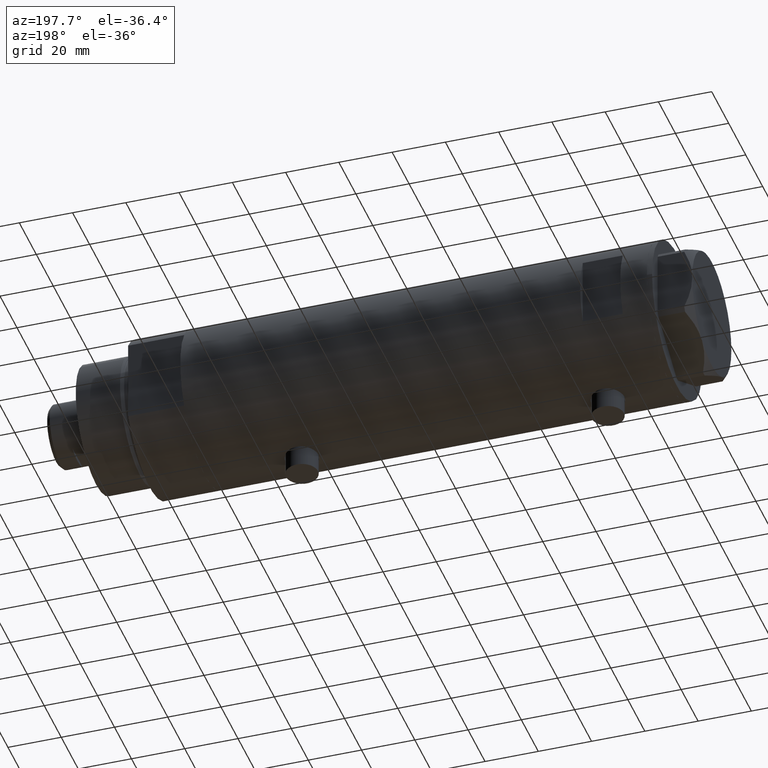
[diagram: clean part render]
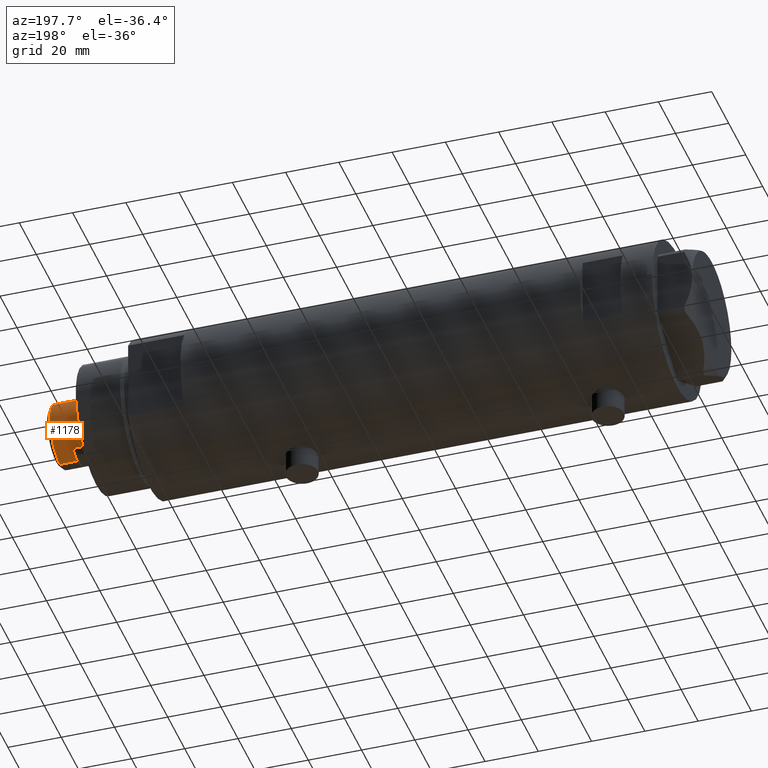
[diagram: same view with one face highlighted and labeled with its STEP entity id]
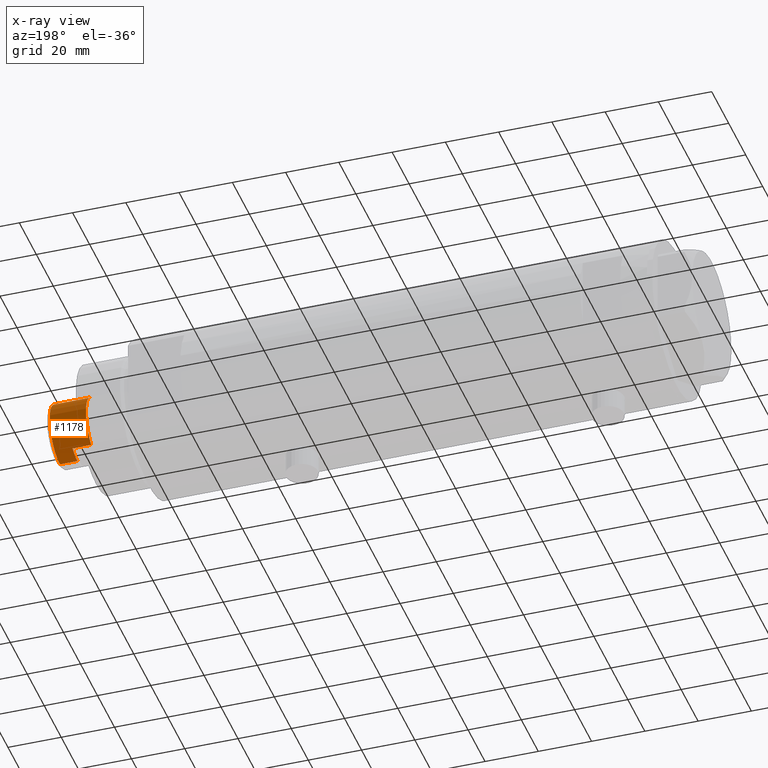
[diagram: x-ray of the same camera — body ghosted, the highlighted face saturated]
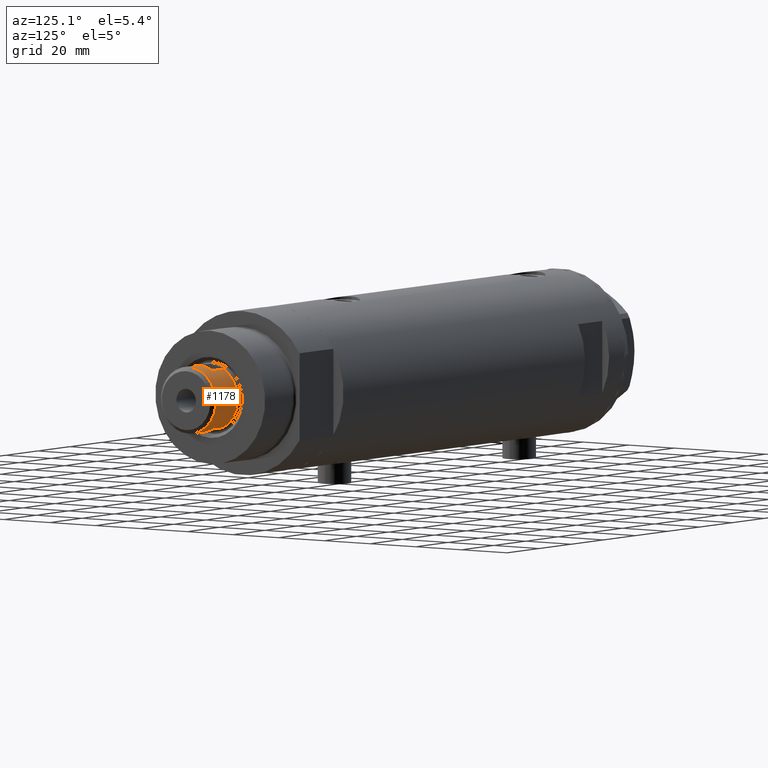
[diagram: same view with one face highlighted and labeled with its STEP entity id]
A machine part, auxiliary view. The second image highlights one B-rep face of the part: STEP entity #1178.
The next image is the same camera in x-ray: the body ghosted, the highlighted face saturated — about 0% of this face is hidden behind the body in this view.
A second angle (auxiliary view) of the same face is appended — the face is thin or edge-on in the first view.
In plain terms, the highlighted cylindrical surface (edge-blend (fillet) strip) has radius 12 mm, axis along (-1, -0, 0).
Its self-contained STEP definition (entity closure, byte-faithful):
#21 = ORIENTED_EDGE ( 'NONE', *, *, #2776, .T. ) ;
#71 = CARTESIAN_POINT ( 'NONE',  ( -10.48861764008966269, 5.829999999999999183, 199.7000000000000171 ) ) ;
#73 = EDGE_CURVE ( 'NONE', #2073, #3695, #3372, .T. ) ;
#249 = EDGE_CURVE ( 'NONE', #3612, #761, #2179, .T. ) ;
#278 = CARTESIAN_POINT ( 'NONE',  ( 0.000000000000000000, 0.000000000000000000, 199.7000000000000171 ) ) ;
#382 = CARTESIAN_POINT ( 'NONE',  ( -12.00000000000000355, 0.000000000000000000, 199.7000000000000171 ) ) ;
#517 = EDGE_LOOP ( 'NONE', ( #21, #4286, #851, #4214, #1190, #2271, #2262, #709 ) ) ;
#575 = CARTESIAN_POINT ( 'NONE',  ( 12.00000000000000000, 1.469576158976823947E-15, 199.7000000000000171 ) ) ;
#703 = DIRECTION ( 'NONE',  ( 0.000000000000000000, 0.000000000000000000, 1.000000000000000000 ) ) ;
#705 = VECTOR ( 'NONE', #3056, 1000.000000000000000 ) ;
#709 = ORIENTED_EDGE ( 'NONE', *, *, #73, .F. ) ;
#761 = VERTEX_POINT ( 'NONE', #2413 ) ;
#851 = ORIENTED_EDGE ( 'NONE', *, *, #3285, .T. ) ;
#999 = EDGE_CURVE ( 'NONE', #3721, #761, #1580, .T. ) ;
#1103 = AXIS2_PLACEMENT_3D ( 'NONE', #3297, #3360, #1898 ) ;
#1155 = CARTESIAN_POINT ( 'NONE',  ( 10.48861764008966269, 5.830000000000000071, 192.7000000000000171 ) ) ;
#1178 = ADVANCED_FACE ( 'NONE', ( #4132 ), #2777, .T. ) ;
#1190 = ORIENTED_EDGE ( 'NONE', *, *, #999, .T. ) ;
#1209 = VERTEX_POINT ( 'NONE', #4199 ) ;
#1262 = CARTESIAN_POINT ( 'NONE',  ( 0.000000000000000000, 0.000000000000000000, 192.7000000000000171 ) ) ;
#1290 = VECTOR ( 'NONE', #3197, 1000.000000000000000 ) ;
#1518 = CARTESIAN_POINT ( 'NONE',  ( -12.00000000000000000, 0.000000000000000000, 206.2999999999999829 ) ) ;
#1537 = LINE ( 'NONE', #575, #2879 ) ;
#1551 = DIRECTION ( 'NONE',  ( -0.000000000000000000, -0.000000000000000000, -1.000000000000000000 ) ) ;
#1580 = CIRCLE ( 'NONE', #4107, 11.99999999999998224 ) ;
#1693 = CARTESIAN_POINT ( 'NONE',  ( -12.00000000000000000, 0.000000000000000000, 199.7000000000000171 ) ) ;
#1713 = DIRECTION ( 'NONE',  ( -0.000000000000000000, -0.000000000000000000, -1.000000000000000000 ) ) ;
#1724 = CARTESIAN_POINT ( 'NONE',  ( -10.48861764008966269, 5.829999999999999183, 199.7000000000000171 ) ) ;
#1817 = CIRCLE ( 'NONE', #3027, 12.00000000000000178 ) ;
#1898 = DIRECTION ( 'NONE',  ( 1.000000000000000000, 0.000000000000000000, 0.000000000000000000 ) ) ;
#2050 = CARTESIAN_POINT ( 'NONE',  ( 10.48861764008966269, 5.830000000000000071, 199.7000000000000171 ) ) ;
#2073 = VERTEX_POINT ( 'NONE', #1518 ) ;
#2096 = CIRCLE ( 'NONE', #4183, 12.00000000000000178 ) ;
#2179 = LINE ( 'NONE', #71, #1290 ) ;
#2262 = ORIENTED_EDGE ( 'NONE', *, *, #2933, .T. ) ;
#2271 = ORIENTED_EDGE ( 'NONE', *, *, #249, .F. ) ;
#2320 = VERTEX_POINT ( 'NONE', #3264 ) ;
#2408 = CARTESIAN_POINT ( 'NONE',  ( 12.00000000000000355, 1.469576158976824342E-15, 199.7000000000000171 ) ) ;
#2413 = CARTESIAN_POINT ( 'NONE',  ( -10.48861764008966269, 5.829999999999960991, 192.7000000000000171 ) ) ;
#2434 = CARTESIAN_POINT ( 'NONE',  ( 0.000000000000000000, 0.000000000000000000, 199.7000000000000171 ) ) ;
#2589 = VECTOR ( 'NONE', #1713, 1000.000000000000000 ) ;
#2672 = DIRECTION ( 'NONE',  ( 0.000000000000000000, 0.000000000000000000, 1.000000000000000000 ) ) ;
#2776 = EDGE_CURVE ( 'NONE', #2073, #2320, #3619, .T. ) ;
#2777 = CYLINDRICAL_SURFACE ( 'NONE', #3093, 12.00000000000000000 ) ;
#2860 = EDGE_CURVE ( 'NONE', #2320, #4306, #1537, .T. ) ;
#2879 = VECTOR ( 'NONE', #1551, 1000.000000000000000 ) ;
#2933 = EDGE_CURVE ( 'NONE', #3612, #3695, #2096, .T. ) ;
#3001 = CARTESIAN_POINT ( 'NONE',  ( 0.000000000000000000, 0.000000000000000000, 199.7000000000000171 ) ) ;
#3027 = AXIS2_PLACEMENT_3D ( 'NONE', #3001, #2672, #3347 ) ;
#3056 = DIRECTION ( 'NONE',  ( -0.000000000000000000, -0.000000000000000000, -1.000000000000000000 ) ) ;
#3093 = AXIS2_PLACEMENT_3D ( 'NONE', #2434, #3809, #3414 ) ;
#3197 = DIRECTION ( 'NONE',  ( -0.000000000000000000, -0.000000000000000000, -1.000000000000000000 ) ) ;
#3260 = EDGE_CURVE ( 'NONE', #1209, #3721, #3778, .T. ) ;
#3262 = DIRECTION ( 'NONE',  ( 0.000000000000000000, 0.000000000000000000, 1.000000000000000000 ) ) ;
#3264 = CARTESIAN_POINT ( 'NONE',  ( 12.00000000000000000, 1.469576158976823947E-15, 206.2999999999999829 ) ) ;
#3285 = EDGE_CURVE ( 'NONE', #4306, #1209, #1817, .T. ) ;
#3297 = CARTESIAN_POINT ( 'NONE',  ( 0.000000000000000000, 0.000000000000000000, 206.2999999999999829 ) ) ;
#3347 = DIRECTION ( 'NONE',  ( 1.000000000000000000, 0.000000000000000000, 0.000000000000000000 ) ) ;
#3360 = DIRECTION ( 'NONE',  ( 0.000000000000000000, 0.000000000000000000, -1.000000000000000000 ) ) ;
#3372 = LINE ( 'NONE', #1693, #705 ) ;
#3414 = DIRECTION ( 'NONE',  ( -1.000000000000000000, 0.000000000000000000, 0.000000000000000000 ) ) ;
#3612 = VERTEX_POINT ( 'NONE', #1724 ) ;
#3619 = CIRCLE ( 'NONE', #1103, 12.00000000000000000 ) ;
#3636 = DIRECTION ( 'NONE',  ( 1.000000000000000000, 0.000000000000000000, 0.000000000000000000 ) ) ;
#3695 = VERTEX_POINT ( 'NONE', #382 ) ;
#3721 = VERTEX_POINT ( 'NONE', #1155 ) ;
#3778 = LINE ( 'NONE', #2050, #2589 ) ;
#3809 = DIRECTION ( 'NONE',  ( -0.000000000000000000, -0.000000000000000000, -1.000000000000000000 ) ) ;
#4107 = AXIS2_PLACEMENT_3D ( 'NONE', #1262, #3262, #3636 ) ;
#4132 = FACE_OUTER_BOUND ( 'NONE', #517, .T. ) ;
#4183 = AXIS2_PLACEMENT_3D ( 'NONE', #278, #703, #4395 ) ;
#4199 = CARTESIAN_POINT ( 'NONE',  ( 10.48861764008966269, 5.830000000000000071, 199.7000000000000171 ) ) ;
#4214 = ORIENTED_EDGE ( 'NONE', *, *, #3260, .T. ) ;
#4286 = ORIENTED_EDGE ( 'NONE', *, *, #2860, .T. ) ;
#4306 = VERTEX_POINT ( 'NONE', #2408 ) ;
#4395 = DIRECTION ( 'NONE',  ( 1.000000000000000000, 0.000000000000000000, 0.000000000000000000 ) ) ;